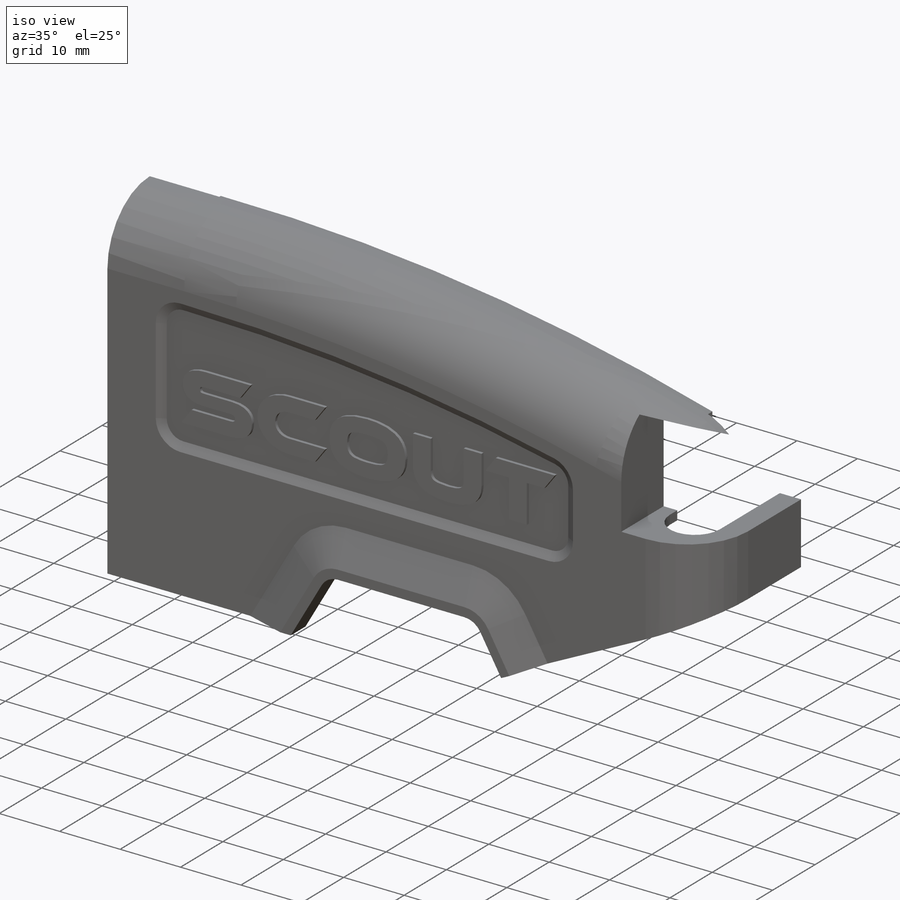
[diagram: iso view]
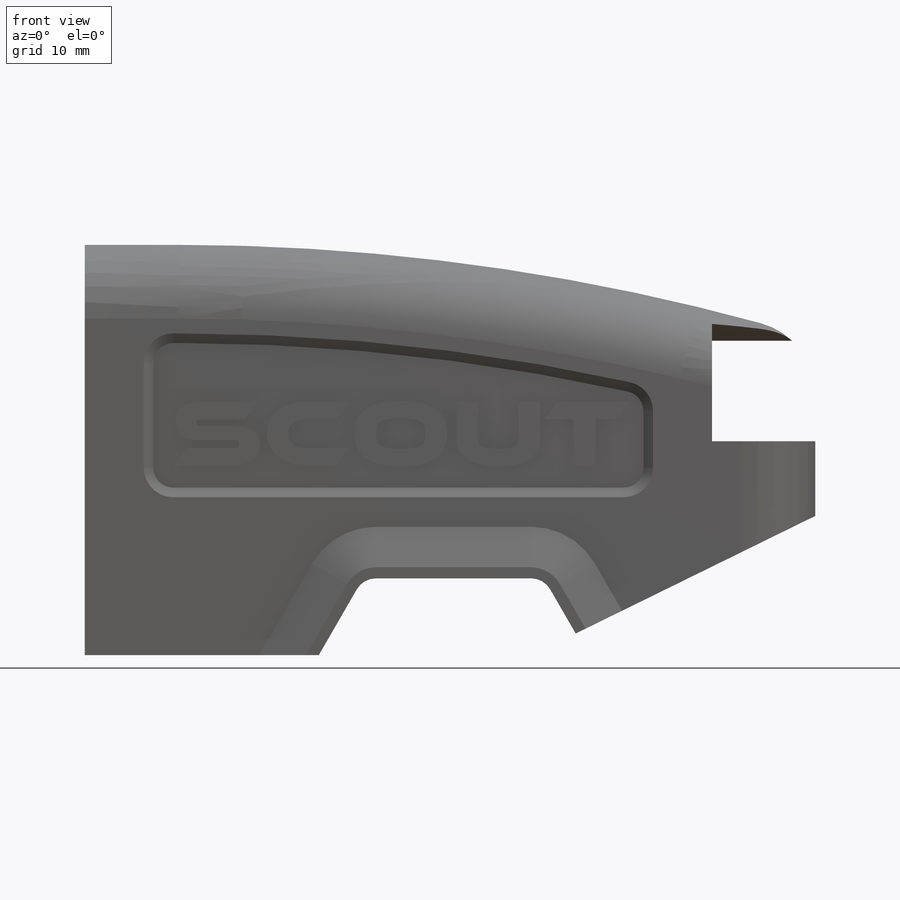
[diagram: front view]
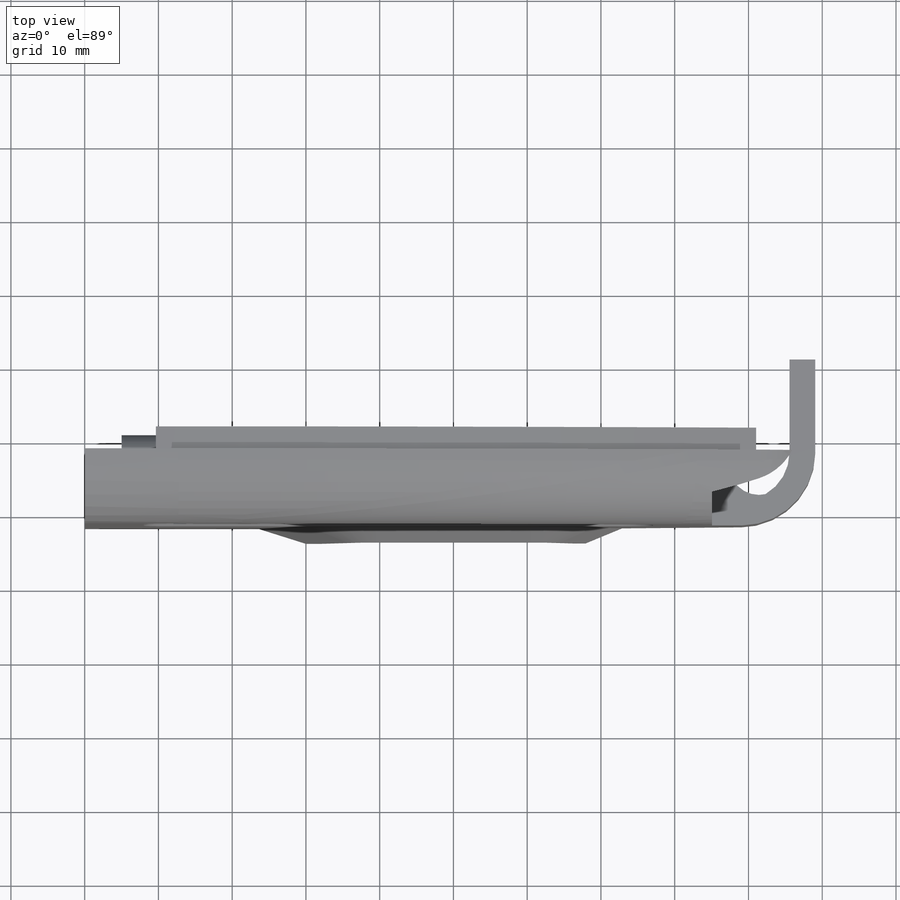
[diagram: top view]
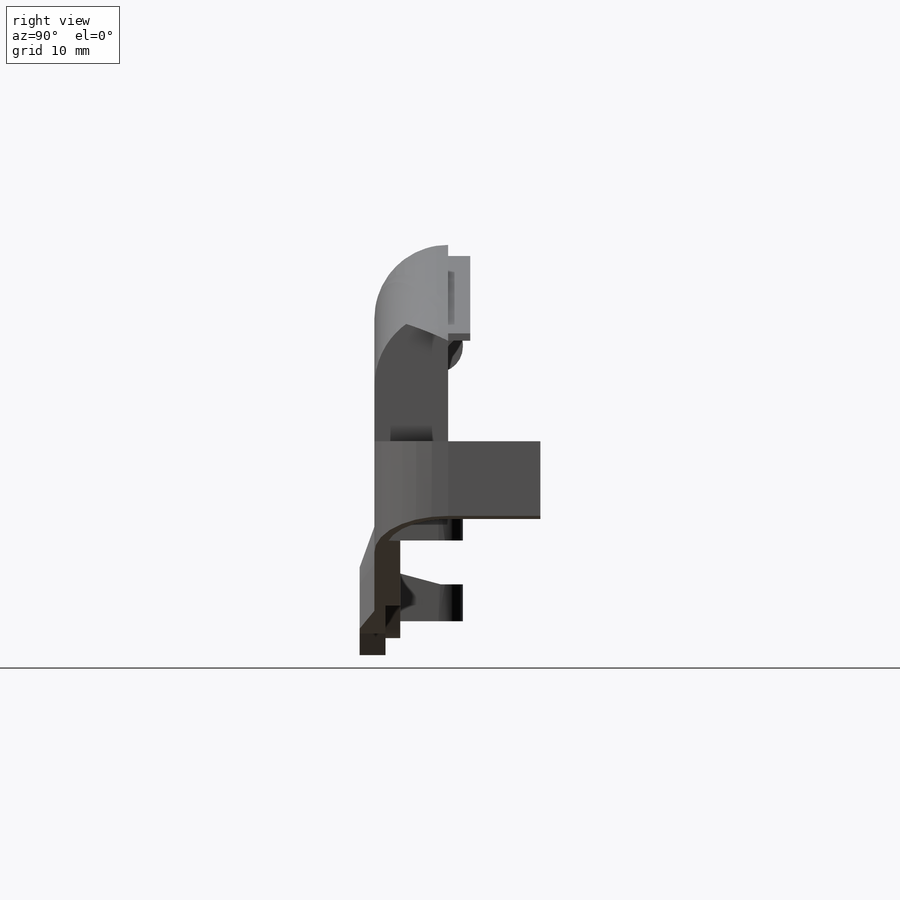
[diagram: right view]
SOLIDWORKS PART (.sldprt)
format: sldprt  version: not decoded by parser v0  size: 1,814,528 bytes
history: native  units: mm
features: sketch x41, cut_extrude x22, extrude x16, fillet x9, chamfer x9, plane x6, mirror x2, material x1, delete_body x1, shell x1 (+16 scaffold rows collapsed)
feature tree (124):
  scaffold x16  (default folders/planes/origin — collapsed)
  material  "1080 Polyurethane"
  sketch  "Sketch1"  dims[c1.D5=210.8327mm c1.D6=2.921mm c1.D9=42.0mm c1.D2=1.778mm c1.D3=~13.294936mm c2.D3=~176.837498deg c3.D3=1.778mm c3.D4=1.778mm c3.D1=12.7mm c3.D7=24.0mm c3.D8=55.626mm c3.D9=~3.260846mm c3.D5=~99.05571mm c3.D6=~36.752023mm c4.D3=1.778mm c4.D2=~11.890434mm c5.D2=120.0deg c5.D3=~8.065742mm c6.D3=120.0deg c6.D4=24.5mm c6.D5=10.41mm c6.D6=50.0mm c6.D10=12.62mm c6.D11=~99.05571mm c6.D12=~18.873977mm c6.D1=0.0mm c7.D5=0.0mm c7.D1=0.0mm]
  extrude  "Boss-Extrude1"  Depth=123.19mm
  fillet  "Fillet2"  Radius=3mm ModelUUID=0mm UUID=0mm
  fillet  "Fillet1"  Radius=10mm
  sketch  "Sketch3"  dims[D1=30.0mm D2=12.0mm]
  plane  "Plane1"  Offset=20mm
  sketch  "Sketch5"  dims[D1=30.0mm D2=15.0mm D3=10.0mm]
  cut_extrude  "Cut-Extrude1"  Depth=20mm
  sketch  "Sketch6"  dims[D6=48.0mm D1=29.0mm D2=16.0mm D3=22.5mm D4=4.0mm D5=5.0mm]
  cut_extrude  "Cut-Extrude2"  Depth=14mm
  mirror  "Mirror1"
  sketch  "Sketch7"  dims[c1.D1=~1.954899mm c2.D1=1.0deg c2.D2=~13.212338mm c3.D2=1.0deg]
  extrude  "Boss-Extrude2"  Depth=102mm
  plane  "Plane2"  Offset=60mm
  sketch  "Sketch8"  dims[D1=1.0mm D2=90.0mm D3=60.0mm]
  cut_extrude  "Cut-Extrude4"  [1 undecoded]
  plane  "Plane3"  Offset=102mm
  chamfer  "Chamfer1"  Distance=1mm Angle=60deg
  sketch  "Sketch10"  dims[D1=1.0mm D2=2.0mm D3=2.0mm D4=2.0mm D5=2.0mm D6=~54.064336mm]
  sketch  "Sketch12"  dims[D1=6.25mm D2=2.0mm]
  fillet  "Fillet4"  Radius=3mm
  cut_extrude  "Cut-Extrude5"  Depth=1.34mm
  sketch  "Sketch14"  dims[D1=7.0mm]
  extrude  "Boss-Extrude3"  Depth=2mm
  chamfer  "Chamfer2"  Distance=2mm Angle=70deg
  mirror  "Mirror2"
  sketch  "Sketch15"
  cut_extrude  "Cut-Extrude7"  [1 undecoded]
  delete_body  "Body-Delete1"
  shell  "Shell1"  Thickness=1.5mm
  sketch  "Sketch17"  dims[D1=0.0mm D2=1.5mm]
  cut_extrude  "Cut-Extrude9"  [1 undecoded]
  sketch  "Sketch18"  dims[D1=0.0mm]
  cut_extrude  "Cut-Extrude10"  [1 undecoded]
  sketch  "Sketch19"  dims[D1=0.0mm]
  cut_extrude  "Cut-Extrude11"  [1 undecoded]
  sketch  "Sketch21"  dims[D1=0.0mm]
  cut_extrude  "Cut-Extrude13"  Depth=1.5mm
  sketch  "Sketch27"  dims[D1=0.0mm]
  extrude  "Boss-Extrude9"  Depth=12.5mm
  plane  "Plane4"  Offset=11mm
  sketch  "Sketch22"  dims[c1.D4=~10.915919mm c2.D4=12.0deg c2.D5=~11.50061mm c3.D5=4.0deg c3.D6=14.0mm c3.D1=0.75mm c3.D2=0.75mm c3.D3=4.0]
  extrude  "Boss-Extrude4"  [1 undecoded]
  sketch  "Sketch23"  dims[c1.D2=1.0mm c1.D3=1.0mm c1.D1=1.0mm c2.D2=1.0mm c2.D3=1.0mm c3.D2=3.0mm c3.D1=0.0mm]
  cut_extrude  "Cut-Extrude14"  [1 undecoded]
  sketch  "Sketch24"  dims[c1.D2=1.0mm c1.D3=1.0mm c2.D2=3.0mm c2.D3=1.0mm c2.D1=0.0mm]
  cut_extrude  "Cut-Extrude15"  [1 undecoded]
  sketch  "Sketch25"  dims[c1.D2=1.0mm c1.D3=1.0mm c2.D2=1.0mm c2.D3=3.0mm c2.D1=0.0mm]
  cut_extrude  "Cut-Extrude16"  [1 undecoded]
  sketch  "Sketch26"  dims[c1.D2=1.0mm c1.D3=1.0mm c1.D1=3.0mm c2.D2=1.0mm c2.D1=0.0mm]
  cut_extrude  "Cut-Extrude17"  [1 undecoded]
  sketch  "Sketch29"  dims[D1=1.5mm]
  extrude  "Boss-Extrude6"  [1 undecoded]
  sketch  "Sketch30"  dims[c1.D3=~2.70764mm c1.D1=3.85mm c1.D2=2.85mm c1.D4=~1.964942mm c2.D4=45.0deg]
  extrude  "Boss-Extrude7"  [1 undecoded]
  sketch  "Sketch31"  dims[D3=1.0mm D1=1.5mm D2=1.5mm]
  extrude  "Boss-Extrude8"  Depth=3mm
  chamfer  "Chamfer4"  Distance=2mm Angle=90deg
  sketch  "Sketch32"
  extrude  "Boss-Extrude10"  [1 undecoded]
  sketch  "Sketch33"  dims[D1=0.0mm]
  cut_extrude  "Cut-Extrude18"  [1 undecoded]
  sketch  "Sketch34"  dims[D2=4.0mm D1=3.5mm]
  cut_extrude  "Cut-Extrude19"  [1 undecoded]
  plane  "Plane5"  Offset=2mm
  sketch  "Sketch37"  dims[c1.D1=48.926mm c2.D1=3.0deg c2.D2=1.9mm c2.D3=1.5mm c2.D4=2.3mm]
  extrude  "RearWall-Lip"  [1 undecoded]
  sketch  "Sketch38"  dims[c1.D4=4.0mm c1.D5=4.0mm c1.D1=8.0mm c1.D2=8.0mm c1.D3=4.0mm c2.D4=2.0mm]
  cut_extrude  "Cut-Extrude21"  Depth=0.75mm
  chamfer  "Chamfer5"  Distance=0.75mm Angle=60deg
  plane  "Plane6"  Offset=7mm
  sketch  "Sketch41"  dims[D1=2.0mm D2=2.0mm]
  extrude  "Boss-Extrude13"  Depth=1.5mm
  sketch  "Sketch42"  dims[D1=0.25mm]
  sketch  "Sketch43"  dims[c1.D1=5.0mm c1.D2=4.6mm c1.D3=15.55mm c1.D4=5.0mm c1.D5=7.0mm c1.D6=7.0mm c1.D7=83.0mm c1.D8=20.0mm c1.D9=42.0mm c1.D10=7.5mm c2.D4=5.0mm]
  extrude  "ScrewBoss-Chassis"  Depth=10.5mm
  chamfer  "Chamfer6"  Distance=10.5mm Angle=3deg
  fillet  "Fillet6"  Radius=3.5mm
  sketch  "Sketch44"  dims[D2=2.0mm D1=6.5mm]
  cut_extrude  "Cut-Extrude22"  Depth=1mm
  sketch  "Sketch45"  dims[D2=2.0mm D1=6.5mm]
  cut_extrude  "Cut-Extrude23"  Depth=1mm
  sketch  "Sketch46"  dims[D2=2.0mm D1=6.5mm]
  cut_extrude  "Cut-Extrude24"  Depth=1mm
  chamfer  "Chamfer7"  Distance=2mm Angle=75deg
  sketch  "Sketch47"  dims[D1=7.25mm D2=53.34mm D3=91.44mm]
  cut_extrude  "Cut-Extrude25"  [1 undecoded]
  sketch  "Sketch49"  dims[c1.D3=1.0mm c1.D1=1.5mm c1.D2=8.0mm c2.D3=4.5mm c2.D4=~5.273892mm c3.D4=90.0deg c4.D4=2.5mm c4.D5=3.0mm]
  extrude  "Boss-Extrude14"  Depth=1.5mm
  chamfer  "Chamfer8"  Distance=2mm Angle=45deg
  fillet  "Fillet7"  Radius=2mm
  sketch  "Sketch50"  dims[c1.D1=0.35mm c1.D3=1.85mm c1.D4=0.35mm c1.D5=1.85mm c2.D1=2.2mm c2.D2=1.5mm]
  extrude  "Bottom-Lip"  Depth=2mm
  sketch  "Sketch51"
  extrude  "Boss-Extrude16"  Depth=1mm
  fillet  "Fillet8"  Radius=2.5mm
  fillet  "Fillet9"  Radius=1mm
  sketch  "Sketch52"
  cut_extrude  "Cut-Extrude26"  [1 undecoded]
  sketch  "Sketch53"  dims[D1=0.0mm]
  cut_extrude  "Cut-Extrude27"  [1 undecoded]
  fillet  "Fillet10"  Radius=2mm
  chamfer  "Chamfer9"  Distance=2mm Angle=90deg
  sketch  "Sketch54"  dims[D1=3.0mm D2=0.0mm]
  extrude  "Boss-Extrude17"  Depth=0.5mm
  chamfer  "Chamfer10"  Distance=0.75mm Angle=45deg
  fillet  "Fillet11"  Radius=0.5mm Thickness=80.01mm
decode coverage: 75 of 101 modeling features carry decoded parameters
note: ~ marks probable driven/reference dimensions
note: 19 parameter values undecoded
summary: no parameter record found for 19 features
note: suppression state not decoded; provenance and decode notes live in map.json
